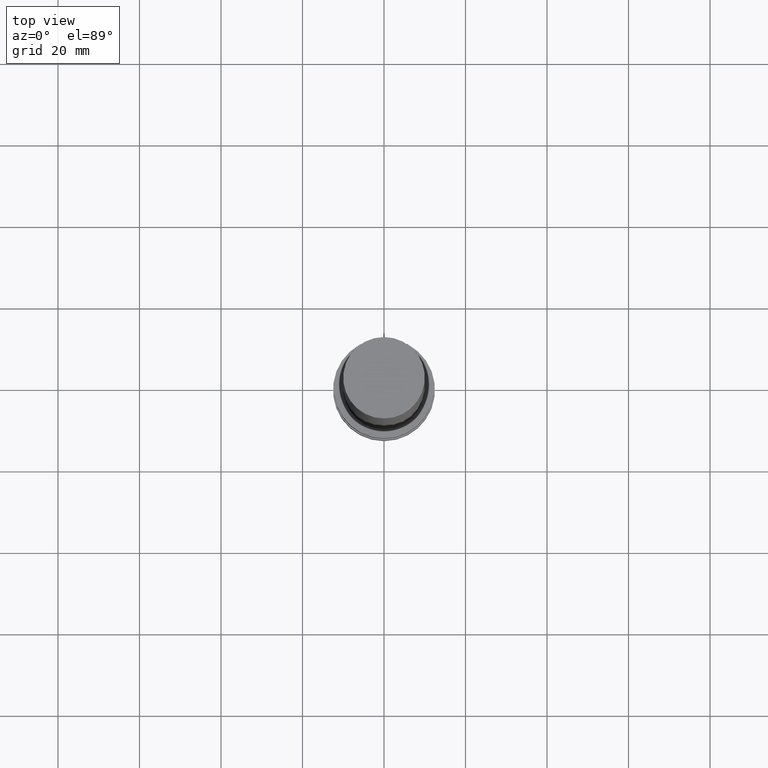
[diagram: clean part render]
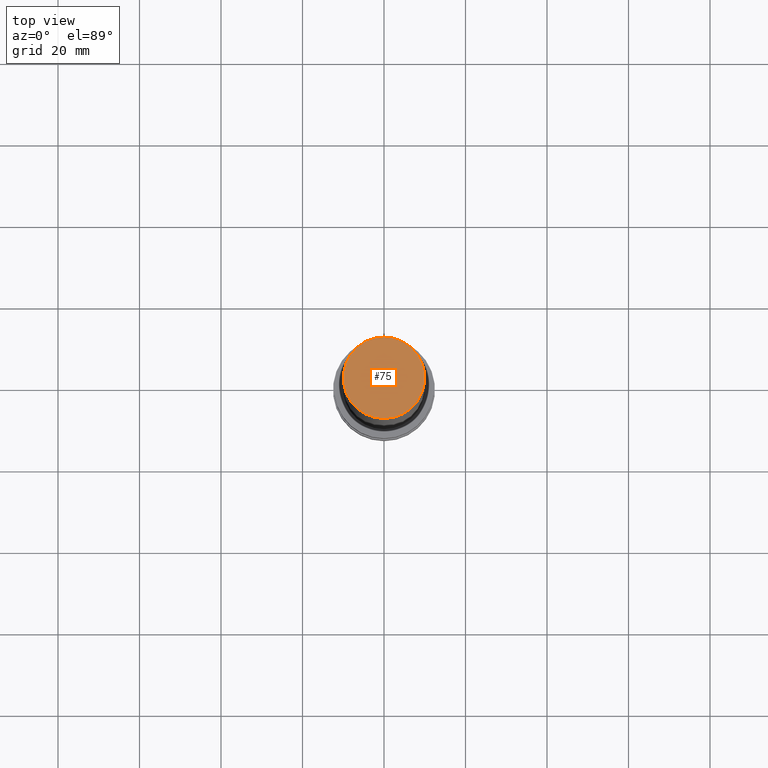
[diagram: same view with one face highlighted and labeled with its STEP entity id]
A machine part, top view. The second image highlights one B-rep face of the part: STEP entity #75.
In plain terms, the highlighted planar face has unit normal (-0, -0, 1).
Its self-contained STEP definition (entity closure, byte-faithful):
#75=ADVANCED_FACE('',(#85),#86,.T.);
#85=FACE_OUTER_BOUND('',#110,.T.);
#86=PLANE('',#111);
#110=EDGE_LOOP('',(#135));
#111=AXIS2_PLACEMENT_3D('',#136,#137,#138);
#135=ORIENTED_EDGE('',*,*,#178,.F.);
#136=CARTESIAN_POINT('',(-1.07768918324967E-014,4.99999999999998,176.0));
#137=DIRECTION('',(-6.12323399573677E-017,-1.22464679914735E-016,1.0));
#138=DIRECTION('',(1.23259516440783E-032,-1.0,-1.22464679914735E-016));
#178=EDGE_CURVE('',#186,#186,#187,.T.);
#186=VERTEX_POINT('',#202);
#187=CIRCLE('',#203,10.0);
#202=CARTESIAN_POINT('',(-1.07768918324967E-014,9.99999999999998,176.0));
#203=AXIS2_PLACEMENT_3D('',#218,#219,#220);
#218=CARTESIAN_POINT('',(-1.07768918324967E-014,-2.15537836649934E-014,176.0));
#219=DIRECTION('',(6.12323399573677E-017,1.22464679914735E-016,-1.0));
#220=DIRECTION('',(-1.23259516440783E-032,1.0,1.22464679914735E-016));